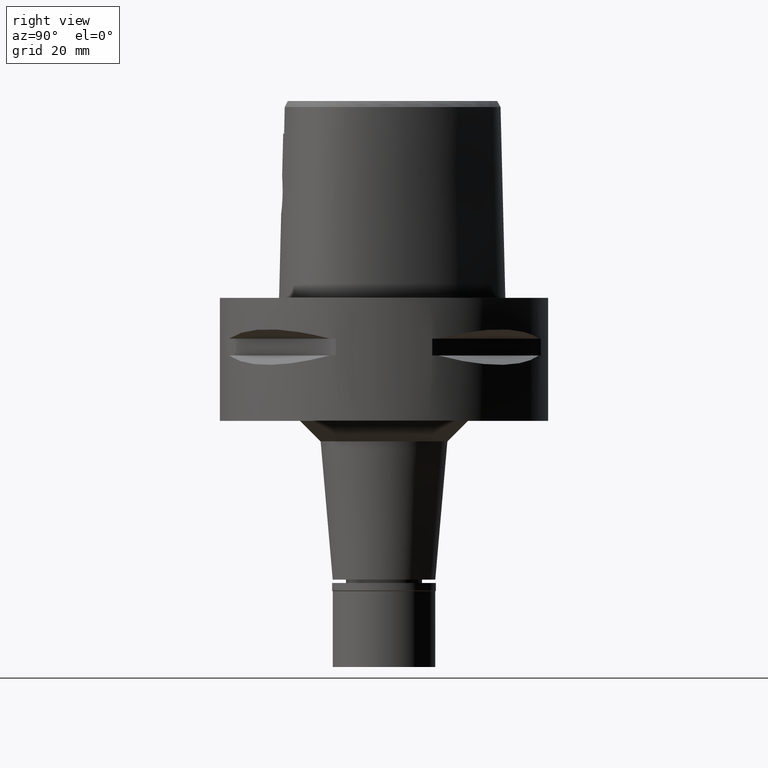
[diagram: clean part render]
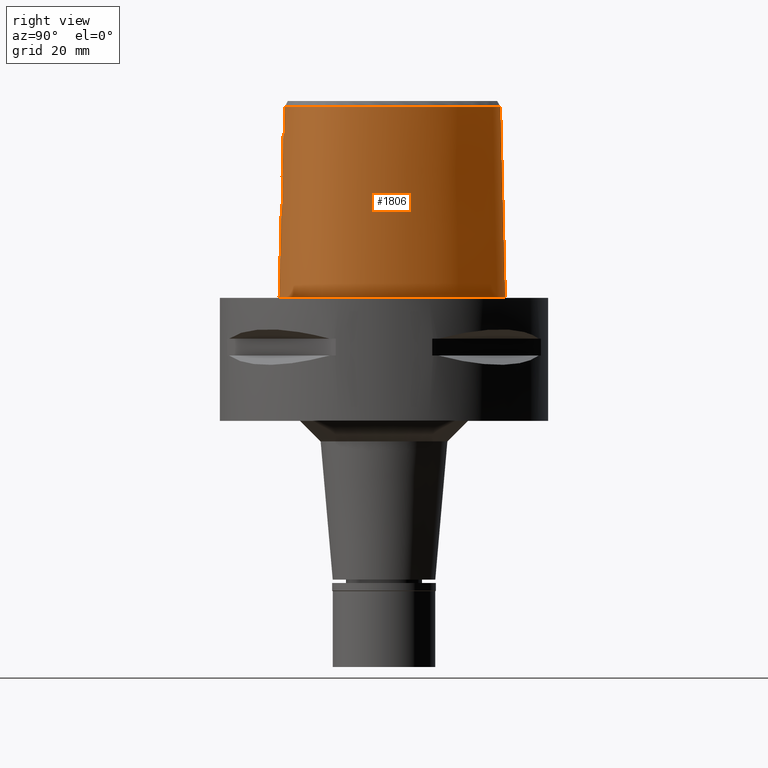
[diagram: same view with one face highlighted and labeled with its STEP entity id]
A machine part, right view. The second image highlights one B-rep face of the part: STEP entity #1806.
In plain terms, the highlighted face is a freeform B-spline surface patch.
Its self-contained STEP definition (entity closure, byte-faithful):
#3 = CARTESIAN_POINT ( 'NONE',  ( 3.512978482355694876, -24.74890643940160473, 27.89278862330787589 ) ) ;
#12 = CARTESIAN_POINT ( 'NONE',  ( 0.7484115207759000077, 29.63215901922000128, -0.9304144788529999932 ) ) ;
#43 = CARTESIAN_POINT ( 'NONE',  ( 11.70978320535079931, -23.05272019185293786, 46.52069240067355338 ) ) ;
#63 = CARTESIAN_POINT ( 'NONE',  ( 26.56868348264874413, -7.988862950300866572, 46.52070085311216019 ) ) ;
#69 = CARTESIAN_POINT ( 'NONE',  ( 6.528779356875999085, -24.06669574070000195, 47.45113842150000494 ) ) ;
#119 = CARTESIAN_POINT ( 'NONE',  ( -0.5548491719361000607, -24.38637857261000264, 47.45113842150000494 ) ) ;
#132 = EDGE_CURVE ( 'NONE', #325, #975, #4537, .T. ) ;
#146 = CARTESIAN_POINT ( 'NONE',  ( 2.373865160417999665, -25.21827242895999888, 15.19676982127000109 ) ) ;
#174 = CARTESIAN_POINT ( 'NONE',  ( -0.5537150990500000480, 28.37988172966000278, 47.45113842150000494 ) ) ;
#196 = EDGE_CURVE ( 'NONE', #4711, #1984, #814, .T. ) ;
#204 = CARTESIAN_POINT ( 'NONE',  ( -0.6060951003561000361, 29.58848805129999704, -0.9304144788529999932 ) ) ;
#207 = CARTESIAN_POINT ( 'NONE',  ( 17.45811262628999927, 19.27961880642000025, 15.19676982127000109 ) ) ;
#218 = CARTESIAN_POINT ( 'NONE',  ( 3.418326490945260865, -24.90370471633881166, 21.99337763265281964 ) ) ;
#230 = CARTESIAN_POINT ( 'NONE',  ( 25.63065467266999775, -13.07945040997999975, 31.32395412138000523 ) ) ;
#258 = CARTESIAN_POINT ( 'NONE',  ( 0.7047156113828999535, 28.82388505275000057, 31.32395412138000523 ) ) ;
#276 = CARTESIAN_POINT ( 'NONE',  ( 0.5741109003796891486, -25.06046598330698671, 20.47661985235025739 ) ) ;
#306 = CARTESIAN_POINT ( 'NONE',  ( 4.547962263617893797, -24.73685171198799182, 24.85950514487636198 ) ) ;
#323 = CARTESIAN_POINT ( 'NONE',  ( 27.68378750939452360, -8.751933590071784508, 1.165658668005574439E-06 ) ) ;
#325 = VERTEX_POINT ( 'NONE', #1724 ) ;
#340 = CARTESIAN_POINT ( 'NONE',  ( 26.34453533305999784, -11.19579297600999901, 31.32395412138000523 ) ) ;
#354 = CARTESIAN_POINT ( 'NONE',  ( 4.255303340876162466, -24.72011691775877651, 26.61166571686794313 ) ) ;
#361 = B_SPLINE_CURVE_WITH_KNOTS ( 'NONE', 3,
 ( #2078, #2003, #4393, #845 ),
 .UNSPECIFIED., .F., .F.,
 ( 4, 4 ),
 ( 0.0000000000000000000, 1.000000000000000000 ),
 .UNSPECIFIED. ) ;
#365 = CARTESIAN_POINT ( 'NONE',  ( 25.95531695965999930, -11.08496013630999855, 47.45113842150000494 ) ) ;
#376 = CARTESIAN_POINT ( 'NONE',  ( 25.63812387330620268, -14.80217771977588015, 1.165658668005574439E-06 ) ) ;
#384 = CARTESIAN_POINT ( 'NONE',  ( 1.153626000818865682, -24.82864766317861083, 29.44729853102404959 ) ) ;
#391 = CARTESIAN_POINT ( 'NONE',  ( 23.44929528157999954, -17.78045351951999820, -0.9304144788529999932 ) ) ;
#396 = CARTESIAN_POINT ( 'NONE',  ( 3.149084868216509125, 29.34015622135638068, 1.165658668005574439E-06 ) ) ;
#411 = CARTESIAN_POINT ( 'NONE',  ( 2.979937750342999792, 28.57037856214000016, 31.32395412138000523 ) ) ;
#427 = CARTESIAN_POINT ( 'NONE',  ( 1.813541865606719039, -24.81148519056494806, 29.17313109452611997 ) ) ;
#463 = CARTESIAN_POINT ( 'NONE',  ( 24.48700992949754607, 6.834036305490400309, 46.52070592457523190 ) ) ;
#469 = VERTEX_POINT ( 'NONE', #2342 ) ;
#486 = CARTESIAN_POINT ( 'NONE',  ( -2.263615543289000344E-12, -25.06378435148999984, 20.44999999999999929 ) ) ;
#494 = CARTESIAN_POINT ( 'NONE',  ( 15.30623779601999956, -22.98697010192000079, -0.9304144788529999932 ) ) ;
#512 = CARTESIAN_POINT ( 'NONE',  ( 2.760678900605070485, 28.19254769429962337, 46.52071606750159560 ) ) ;
#553 = CARTESIAN_POINT ( 'NONE',  ( -0.8532294277651999437, -25.59082453097000354, -0.9304144788529999932 ) ) ;
#604 = CARTESIAN_POINT ( 'NONE',  ( 4.602925666818999950, -24.35121855888000297, 40.00000005214999987 ) ) ;
#605 = CARTESIAN_POINT ( 'NONE',  ( 27.12297207985999847, -11.41745865541999905, -0.9304144788529999932 ) ) ;
#619 = CARTESIAN_POINT ( 'NONE',  ( 1.157035249423343126, -25.04636291852922625, 20.59695966232724373 ) ) ;
#635 = CARTESIAN_POINT ( 'NONE',  ( 15.01246784659999989, -22.23414198533000175, 31.32395412138000523 ) ) ;
#646 = CARTESIAN_POINT ( 'NONE',  ( 1.374979210368837412, -25.03889659011748492, 20.66206490747627456 ) ) ;
#701 = CARTESIAN_POINT ( 'NONE',  ( 4.412773899541611478, -24.77516587915418356, 23.85162301166201360 ) ) ;
#739 = CARTESIAN_POINT ( 'NONE',  ( 27.30517726791000044, -8.703986977937999470, 15.19676982127000109 ) ) ;
#744 = CARTESIAN_POINT ( 'NONE',  ( 24.77458491141283758, -16.12173826395166998, 1.165658668005574439E-06 ) ) ;
#762 = CARTESIAN_POINT ( 'NONE',  ( 13.23332856296000060, 24.06149249906999898, -0.9304144788529999932 ) ) ;
#785 = CARTESIAN_POINT ( 'NONE',  ( 24.60869384124000092, -14.20783601294000142, 47.45113842150000494 ) ) ;
#804 = CARTESIAN_POINT ( 'NONE',  ( 0.5545157691444380088, -24.83629963747999625, 29.55000000000000426 ) ) ;
#811 = CARTESIAN_POINT ( 'NONE',  ( 8.683908161916999546, 25.77663442150999984, 47.45113842150000494 ) ) ;
#814 = LINE ( 'NONE', #486, #3118 ) ;
#819 = CARTESIAN_POINT ( 'NONE',  ( 4.148697022416999716E-11, 29.57499999998999840, 1.067294401005999885E-13 ) ) ;
#845 = CARTESIAN_POINT ( 'NONE',  ( -1.451045074373000022E-08, -24.57504746727000011, 40.00000005214000254 ) ) ;
#850 = CARTESIAN_POINT ( 'NONE',  ( 3.227783996387110221, -24.76107025147648244, 28.20686722737168850 ) ) ;
#886 = CARTESIAN_POINT ( 'NONE',  ( 4.472216720976999405, -24.20009030094000124, 46.52069014668999358 ) ) ;
#892 = CARTESIAN_POINT ( 'NONE',  ( -0.8462047059430000129, -25.18772800980000071, 15.19676982127000109 ) ) ;
#902 = EDGE_CURVE ( 'NONE', #5087, #975, #5099, .T. ) ;
#975 = VERTEX_POINT ( 'NONE', #3114 ) ;
#994 = CARTESIAN_POINT ( 'NONE',  ( 26.37046814545000117, -13.40391019821999841, -0.9304144788529999932 ) ) ;
#1007 = CARTESIAN_POINT ( 'NONE',  ( 1.609901483201636729, -25.02958960435421076, 20.74402583925053989 ) ) ;
#1020 = CARTESIAN_POINT ( 'NONE',  ( -0.5711750994854000174, 28.78275050354000086, 31.32395412138000523 ) ) ;
#1023 = CARTESIAN_POINT ( 'NONE',  ( 26.00056140906000124, -13.24168030409999908, 15.19676982127000109 ) ) ;
#1038 = CARTESIAN_POINT ( 'NONE',  ( 4.549979298456325871, -24.73407938846012755, 24.96161245962009900 ) ) ;
#1051 = CARTESIAN_POINT ( 'NONE',  ( -0.8826521036007999310, 29.16640542141000125, 15.19676982127000109 ) ) ;
#1054 = CARTESIAN_POINT ( 'NONE',  ( 21.65785138289999878, 12.50416150533999904, 31.32395412138000523 ) ) ;
#1065 = CARTESIAN_POINT ( 'NONE',  ( 3.180359783745228874, -24.92613363770006885, 21.74608895217525983 ) ) ;
#1113 = EDGE_LOOP ( 'NONE', ( #2477, #1489, #4669, #1833, #1149, #2157, #1622, #4145 ) ) ;
#1123 = CARTESIAN_POINT ( 'NONE',  ( 4.186622009783885545, -24.81141158316092543, 23.21777758281610460 ) ) ;
#1149 = ORIENTED_EDGE ( 'NONE', *, *, #2198, .T. ) ;
#1158 = CARTESIAN_POINT ( 'NONE',  ( 17.77103258631999694, 19.53703864450000083, -0.9304144788529999932 ) ) ;
#1170 = CARTESIAN_POINT ( 'NONE',  ( 3.115833847005024637, -24.76582665838806463, 28.31908668410564189 ) ) ;
#1179 = CARTESIAN_POINT ( 'NONE',  ( 20.70054131112000206, -18.64994422812999986, 47.45113842150000494 ) ) ;
#1188 = CARTESIAN_POINT ( 'NONE',  ( 6.262496933459375192, 28.35083005113985521, 1.165658668005574439E-06 ) ) ;
#1194 = CARTESIAN_POINT ( 'NONE',  ( 1.351075727145000046E-14, -24.83629963747999980, 29.55000000000000071 ) ) ;
#1205 = CARTESIAN_POINT ( 'NONE',  ( 5.801139432045999911, 27.25218159391999961, 47.45113842150000494 ) ) ;
#1210 = CARTESIAN_POINT ( 'NONE',  ( 5.530043876419373561, 27.35846726636021131, 46.52071494050976952 ) ) ;
#1221 = CARTESIAN_POINT ( 'NONE',  ( 3.252660951005723611, -24.76001264346002273, 28.18163816682579892 ) ) ;
#1231 = CARTESIAN_POINT ( 'NONE',  ( 26.53043812451372219, -3.252830914801609907, 46.52070254359984602 ) ) ;
#1245 = CARTESIAN_POINT ( 'NONE',  ( 3.756465253610790089, -24.73852494831078275, 27.57169756947411798 ) ) ;
#1389 = CARTESIAN_POINT ( 'NONE',  ( -1.821165774657999902E-11, -25.57499999999999929, 1.131317262092999931E-13 ) ) ;
#1391 = FACE_OUTER_BOUND ( 'NONE', #1113, .T. ) ;
#1401 = CARTESIAN_POINT ( 'NONE',  ( -1.451045074373000022E-08, -24.57504746727000011, 40.00000005214000254 ) ) ;
#1404 = CARTESIAN_POINT ( 'NONE',  ( 2.697261088284074404, -24.96604596303032508, 21.33198344650104872 ) ) ;
#1417 = CARTESIAN_POINT ( 'NONE',  ( 21.19046239205000148, -19.29498367028000416, 15.19676982127000109 ) ) ;
#1429 = CARTESIAN_POINT ( 'NONE',  ( 4.537017841947838193, -24.74324082396890034, 24.64916680772595825 ) ) ;
#1443 = CARTESIAN_POINT ( 'NONE',  ( 27.06950059939999775, -5.357664959743000388, 31.32395412138000523 ) ) ;
#1462 = CARTESIAN_POINT ( 'NONE',  ( 4.560197061652469408, -24.30012317751191020, 42.17356341699667155 ) ) ;
#1488 = CARTESIAN_POINT ( 'NONE',  ( 3.205701519811287703, -24.92381821717546586, 21.77105828208824789 ) ) ;
#1489 = ORIENTED_EDGE ( 'NONE', *, *, #132, .T. ) ;
#1554 = CARTESIAN_POINT ( 'NONE',  ( 22.57751558829999894, -16.93548378571999891, 47.45113842150000494 ) ) ;
#1563 = CARTESIAN_POINT ( 'NONE',  ( 22.33885463233493951, 12.89734373536445844, 1.165658668005574439E-06 ) ) ;
#1571 = CARTESIAN_POINT ( 'NONE',  ( 1.883305297015232194, -24.80958828430692975, 29.14211520707036129 ) ) ;
#1578 = CARTESIAN_POINT ( 'NONE',  ( 24.79336081453000062, -16.13554022454000147, -0.9304144788529999932 ) ) ;
#1584 = CARTESIAN_POINT ( 'NONE',  ( 27.53737508972407255, -1.765625004409581589, 1.165658668005574439E-06 ) ) ;
#1591 = CARTESIAN_POINT ( 'NONE',  ( 4.337077477086218380, -24.71860659089786338, 26.37767366826317783 ) ) ;
#1600 = CARTESIAN_POINT ( 'NONE',  ( 25.65830880168000050, -14.81383149362000040, -0.9304144788529999932 ) ) ;
#1607 = B_SPLINE_CURVE_WITH_KNOTS ( 'NONE', 3,
 ( #3112, #5079, #276, #2249, #619, #646, #3861, #1007, #3447, #1932, #2644, #2277, #4579, #1882, #2611, #3419, #1404, #3002, #4609, #5026, #4193, #4637, #1065, #2223, #1488, #3806, #218, #3027, #2694, #1826, #3083, #2671, #4661, #4688, #4995, #3832, #4247, #1123, #4272, #701, #3503, #2311, #1429, #3889, #306, #2724, #1038, #1907, #1643, #3239, #3936, #1591, #4811, #354, #3164, #4739, #2385, #1960, #3621, #4422, #1245, #4790, #3, #2842, #3598, #3554, #3188, #1221, #4348, #850, #1170, #5132, #4373, #4762, #3527, #2746, #4322, #2768, #2820, #2456, #4720, #1571, #427, #2007, #384, #804, #1194 ),
 .UNSPECIFIED., .F., .F.,
 ( 4, 2, 2, 1, 1, 1, 1, 2, 2, 2, 2, 2, 1, 1, 2, 2, 2, 2, 2, 2, 1, 2, 2, 2, 2, 1, 2, 2, 2, 2, 1, 1, 1, 2, 2, 2, 2, 2, 1, 1, 2, 2, 2, 1, 2, 2, 2, 1, 2, 2, 4 ),
 ( 0.0000000000000000000, 0.06249999999999443501, 0.09374999999999164557, 0.1093749999999901190, 0.1171874999999895223, 0.1210937499999893419, 0.1230468749999890921, 0.1240234374999889394, 0.1249999999999888006, 0.1874999999999806544, 0.2187499999999765188, 0.2343749999999744926, 0.2421874999999732991, 0.2460937499999727440, 0.2480468749999724110, 0.2499999999999721056, 0.2812499999999660272, 0.2968749999999629741, 0.3124999999999599209, 0.3437499999999538147, 0.3593749999999510947, 0.3671874999999493738, 0.3749999999999477085, 0.4374999999999329425, 0.4687499999999258926, 0.4843749999999227840, 0.4921874999999212297, 0.4999999999999196199, 0.5624999999999070743, 0.5937499999999008571, 0.6093749999998977485, 0.6171874999998963052, 0.6210937499998955280, 0.6230468749998950839, 0.6249999999998947509, 0.6874999999998977485, 0.7187499999998993028, 0.7343749999999003020, 0.7421874999999008571, 0.7460937499999014122, 0.7480468749999018563, 0.7499999999999024114, 0.7812499999999144018, 0.7968749999999205080, 0.8046874999999235056, 0.8124999999999263922, 0.8437499999999386047, 0.8593749999999447109, 0.8671874999999478195, 0.8749999999999508171, 1.000000000000000000 ),
 .UNSPECIFIED. ) ;
#1622 = ORIENTED_EDGE ( 'NONE', *, *, #196, .T. ) ;
#1643 = CARTESIAN_POINT ( 'NONE',  ( 4.523121810470202675, -24.72136632330987638, 25.57645994462144046 ) ) ;
#1675 = CARTESIAN_POINT ( 'NONE',  ( 26.66096789089045416, -6.450661550929212673, 46.52070141660802705 ) ) ;
#1710 = LINE ( 'NONE', #4055, #2802 ) ;
#1724 = CARTESIAN_POINT ( 'NONE',  ( -1.216573165896999972E-11, 28.41206021534999593, 46.52071719450999154 ) ) ;
#1730 = CARTESIAN_POINT ( 'NONE',  ( -0.8391799841207999711, -24.78463148862999788, 31.32395412138000523 ) ) ;
#1756 = CARTESIAN_POINT ( 'NONE',  ( 11.43012068979999896, -22.98864608961000044, 47.45113842150000494 ) ) ;
#1806 = ADVANCED_FACE ( 'NONE', ( #1391 ), #4725, .T. ) ;
#1815 = CARTESIAN_POINT ( 'NONE',  ( -0.9090099844914000249, 29.56867551602000077, -0.9304144788529999932 ) ) ;
#1817 = CARTESIAN_POINT ( 'NONE',  ( 9.105791465501001269, 26.46675914480000102, 15.19676982127000109 ) ) ;
#1826 = CARTESIAN_POINT ( 'NONE',  ( 3.695416430653968742, -24.87420445000564229, 22.34444809527643372 ) ) ;
#1833 = ORIENTED_EDGE ( 'NONE', *, *, #2556, .T. ) ;
#1838 = CARTESIAN_POINT ( 'NONE',  ( 26.36214112192999792, -1.945111148517999933, 47.45113842150000494 ) ) ;
#1865 = CARTESIAN_POINT ( 'NONE',  ( -0.8299363418196000763, 28.36186523219999955, 47.45113842150000494 ) ) ;
#1882 = CARTESIAN_POINT ( 'NONE',  ( 1.952635857166618250, -25.01389984458333160, 20.88358337727347802 ) ) ;
#1907 = CARTESIAN_POINT ( 'NONE',  ( 4.550159243768822748, -24.72595648767390131, 25.28426205013432337 ) ) ;
#1923 = CARTESIAN_POINT ( 'NONE',  ( 6.691850459819625563, -25.24546872104254192, 1.165658668005574439E-06 ) ) ;
#1932 = CARTESIAN_POINT ( 'NONE',  ( 1.704163054240290798, -25.02540437729527412, 20.78117410888068761 ) ) ;
#1940 = CARTESIAN_POINT ( 'NONE',  ( 27.87808443104999867, -5.337383714067000184, -0.9304144788529999932 ) ) ;
#1960 = CARTESIAN_POINT ( 'NONE',  ( 4.208386412724203218, -24.72133790640166495, 26.72975093107580946 ) ) ;
#1969 = CARTESIAN_POINT ( 'NONE',  ( 12.70057963610000051, 23.45048169773000168, 31.32395412138000523 ) ) ;
#1978 = CARTESIAN_POINT ( 'NONE',  ( 26.34912734546020019, -13.39455076952570600, 1.165658668005574439E-06 ) ) ;
#1984 = VERTEX_POINT ( 'NONE', #1389 ) ;
#1992 = CARTESIAN_POINT ( 'NONE',  ( 26.73375370645999993, -11.30662581572000036, 15.19676982127000109 ) ) ;
#2003 = CARTESIAN_POINT ( 'NONE',  ( 3.083106517893279719, -24.50056604487573964, 40.00000010051915211 ) ) ;
#2007 = CARTESIAN_POINT ( 'NONE',  ( 1.779627886570329887, -24.81238721778816014, 29.18772178098383918 ) ) ;
#2017 = CARTESIAN_POINT ( 'NONE',  ( 2.892852102256000091, 28.17405737630999951, 47.45113842150000494 ) ) ;
#2048 = CARTESIAN_POINT ( 'NONE',  ( 17.84219066873169979, -20.48406917474746436, 46.52069465465715581 ) ) ;
#2071 = CARTESIAN_POINT ( 'NONE',  ( 25.61240997289474208, -12.23358473966203164, 46.52069916262439619 ) ) ;
#2078 = CARTESIAN_POINT ( 'NONE',  ( 4.602925666818999950, -24.35121855888000297, 40.00000005214999987 ) ) ;
#2112 = B_SPLINE_CURVE_WITH_KNOTS ( 'NONE', 3,
 ( #4305, #3191, #4743, #3145 ),
 .UNSPECIFIED., .F., .F.,
 ( 4, 4 ),
 ( 0.0000000000000000000, 1.000000000000000000 ),
 .UNSPECIFIED. ) ;
#2118 = CARTESIAN_POINT ( 'NONE',  ( 6.913370730854801138, 26.74336904842474638, 46.52071437701388135 ) ) ;
#2151 = CARTESIAN_POINT ( 'NONE',  ( 6.584202216753999970, -24.46732447588999904, 31.32395412138000523 ) ) ;
#2157 = ORIENTED_EDGE ( 'NONE', *, *, #4949, .F. ) ;
#2198 = EDGE_CURVE ( 'NONE', #2321, #469, #2112, .T. ) ;
#2210 = CARTESIAN_POINT ( 'NONE',  ( 22.35908247772000124, 12.90902243052999943, -0.9304144788529999932 ) ) ;
#2223 = CARTESIAN_POINT ( 'NONE',  ( 3.196341748950109363, -24.92467674393279253, 21.76178677583788001 ) ) ;
#2237 = CARTESIAN_POINT ( 'NONE',  ( 24.46791223490000178, -15.89630654072999860, 15.19676982127000109 ) ) ;
#2249 = CARTESIAN_POINT ( 'NONE',  ( 1.011135947205846985, -25.05051087875798288, 20.56129276502834102 ) ) ;
#2277 = CARTESIAN_POINT ( 'NONE',  ( 1.726554843534495953, -25.02437791916836218, 20.79030502623886179 ) ) ;
#2278 = CARTESIAN_POINT ( 'NONE',  ( 4.516620281278921567, -24.24973700794193476, 44.34712678184333612 ) ) ;
#2311 = CARTESIAN_POINT ( 'NONE',  ( 4.517116520646562883, -24.75057419275595549, 24.43553773667433404 ) ) ;
#2321 = VERTEX_POINT ( 'NONE', #1401 ) ;
#2342 = CARTESIAN_POINT ( 'NONE',  ( 1.351075727145000046E-14, -24.83629963747999980, 29.55000000000000071 ) ) ;
#2344 = CARTESIAN_POINT ( 'NONE',  ( 26.90338677673999968, -8.653104855035998355, 31.32395412138000523 ) ) ;
#2352 = CARTESIAN_POINT ( 'NONE',  ( 17.75297948908530898, 19.52218748138929172, 1.165658668005574439E-06 ) ) ;
#2368 = CARTESIAN_POINT ( 'NONE',  ( 12.96695409952999967, 23.75598709839999856, 15.19676982127000109 ) ) ;
#2385 = CARTESIAN_POINT ( 'NONE',  ( 4.212885333431600543, -24.72121330192674549, 26.71877560768000492 ) ) ;
#2395 = CARTESIAN_POINT ( 'NONE',  ( 18.56135208398999836, -21.47443746694999689, -0.9304144788529999932 ) ) ;
#2402 = CARTESIAN_POINT ( 'NONE',  ( 25.20914247278295761, 6.827421863989363793, 1.165658668005574439E-06 ) ) ;
#2417 = CARTESIAN_POINT ( 'NONE',  ( 8.894849813708999520, 26.12169678314999999, 31.32395412138000523 ) ) ;
#2419 = CARTESIAN_POINT ( 'NONE',  ( 23.08984995680363994, -16.35075897049260973, 46.52069719038874496 ) ) ;
#2423 = CARTESIAN_POINT ( 'NONE',  ( 1.049694955991578693, 29.57499997086068433, 1.165658668005574439E-06 ) ) ;
#2443 = CARTESIAN_POINT ( 'NONE',  ( 10.99875819582644709, 24.38035098656050792, 46.52071268652618130 ) ) ;
#2456 = CARTESIAN_POINT ( 'NONE',  ( 2.087632527504702740, -24.80370565429717189, 29.04349576580941061 ) ) ;
#2477 = ORIENTED_EDGE ( 'NONE', *, *, #3860, .F. ) ;
#2516 = CARTESIAN_POINT ( 'NONE',  ( 1.375467128704392694, 28.41206022877313586, 46.52071663099749799 ) ) ;
#2556 = EDGE_CURVE ( 'NONE', #5087, #2321, #361, .T. ) ;
#2573 = CARTESIAN_POINT ( 'NONE',  ( -0.5886350999207000667, 29.18561927741999895, 15.19676982127000109 ) ) ;
#2600 = CARTESIAN_POINT ( 'NONE',  ( 24.14246365528000027, -15.65707285691999751, 31.32395412138000523 ) ) ;
#2611 = CARTESIAN_POINT ( 'NONE',  ( 2.192364263587617490, -25.00047163864963551, 21.00192190659220515 ) ) ;
#2629 = CARTESIAN_POINT ( 'NONE',  ( 26.40443226313000125, 1.802817673352000050, 15.19676982127000109 ) ) ;
#2644 = CARTESIAN_POINT ( 'NONE',  ( 1.717599865389492830, -25.02478947459729852, 20.78664336873125151 ) ) ;
#2658 = CARTESIAN_POINT ( 'NONE',  ( 24.95856549471999841, -14.40983450649999931, 31.32395412138000523 ) ) ;
#2669 = B_SPLINE_CURVE_WITH_KNOTS ( 'NONE', 3,
 ( #3952, #2710, #1923, #2739, #4708, #3929, #3156, #4290, #744, #376, #1978, #3569, #323, #5145, #1584, #5123, #2402, #1563, #2352, #3995, #3206, #1188, #396, #2423, #819 ),
 .UNSPECIFIED., .F., .F.,
 ( 4, 1, 1, 1, 1, 1, 1, 1, 1, 1, 1, 1, 1, 1, 1, 1, 1, 1, 1, 1, 1, 1, 4 ),
 ( 0.0000000000000000000, 0.08333333333347001104, 0.1250000000001000033, 0.1666666666668000230, 0.2083333333334000115, 0.2500000000000000000, 0.2916666666666999919, 0.3125000000000000000, 0.3333333333333000081, 0.3541666666666999919, 0.3750000000000000000, 0.4166666666666000163, 0.4583333333332000326, 0.4999999999998999689, 0.5416666666666000163, 0.5833333333331000015, 0.6666666666664999852, 0.7499999999997000177, 0.8333333333329999704, 0.8749999999995999866, 0.9166666666663000340, 0.9583333333329000503, 1.000000000000000000 ),
 .UNSPECIFIED. ) ;
#2671 = CARTESIAN_POINT ( 'NONE',  ( 3.861082105047251911, -24.85463631592574174, 22.58840412900304173 ) ) ;
#2694 = CARTESIAN_POINT ( 'NONE',  ( 3.606429171763833263, -24.88406245827873065, 22.22480142265834857 ) ) ;
#2710 = CARTESIAN_POINT ( 'NONE',  ( 2.676740183930187200, -25.57499997085983523, 1.165658668005574439E-06 ) ) ;
#2724 = CARTESIAN_POINT ( 'NONE',  ( 4.549574022937066253, -24.73494683104343395, 24.92875559372933836 ) ) ;
#2739 = CARTESIAN_POINT ( 'NONE',  ( 11.74025984713455095, -24.13566403432510299, 1.165658668005574439E-06 ) ) ;
#2746 = CARTESIAN_POINT ( 'NONE',  ( 2.592678685478296607, -24.78641481269938041, 28.73923899945384264 ) ) ;
#2755 = CARTESIAN_POINT ( 'NONE',  ( 17.14519266625999805, 19.02219896832999879, 31.32395412138000523 ) ) ;
#2768 = CARTESIAN_POINT ( 'NONE',  ( 2.410767390560844881, -24.79324877274626715, 28.86155595108843386 ) ) ;
#2777 = CARTESIAN_POINT ( 'NONE',  ( 18.36798846925000106, -21.11924012313000176, 15.19676982127000109 ) ) ;
#2802 = VECTOR ( 'NONE', #2890, 1000.000000000000000 ) ;
#2804 = CARTESIAN_POINT ( 'NONE',  ( 3.067023398429000292, 28.96669974797000080, 15.19676982127000109 ) ) ;
#2807 = CARTESIAN_POINT ( 'NONE',  ( 16.39076485916855574, -21.20751266143476244, 46.52069409116126764 ) ) ;
#2820 = CARTESIAN_POINT ( 'NONE',  ( 2.284825071839919897, -24.79755434855746898, 28.93755567619670188 ) ) ;
#2842 = CARTESIAN_POINT ( 'NONE',  ( 3.458990831517686271, -24.75121472495268904, 27.95724070546421913 ) ) ;
#2878 = CARTESIAN_POINT ( 'NONE',  ( 20.45409312013283554, -18.82869992194089903, 46.52069578164897479 ) ) ;
#2890 = DIRECTION ( 'NONE',  ( 1.152947520041030048E-12, 0.02499051293969065113, -0.9996876883622259902 ) ) ;
#2907 = CARTESIAN_POINT ( 'NONE',  ( -0.5595330821651999242, -24.78951210770999936, 31.32395412138000523 ) ) ;
#2964 = CARTESIAN_POINT ( 'NONE',  ( 15.15935282130999973, -22.61055604362999816, 15.19676982127000109 ) ) ;
#2989 = CARTESIAN_POINT ( 'NONE',  ( -0.5689009026233999844, -25.59577917789000168, -0.9304144788529999932 ) ) ;
#3002 = CARTESIAN_POINT ( 'NONE',  ( 2.890648186359103811, -24.95092863274544825, 21.48525694161333988 ) ) ;
#3017 = CARTESIAN_POINT ( 'NONE',  ( 27.56041892245000113, -1.762105663755000107, -0.9304144788529999932 ) ) ;
#3027 = CARTESIAN_POINT ( 'NONE',  ( 3.560464869665294518, -24.88898092548869911, 22.16607190872599631 ) ) ;
#3037 = VERTEX_POINT ( 'NONE', #3463 ) ;
#3044 = CARTESIAN_POINT ( 'NONE',  ( 26.66520868358000129, -5.367805582582000135, 47.45113842150000494 ) ) ;
#3083 = CARTESIAN_POINT ( 'NONE',  ( 3.739368471919783055, -24.86915408846631692, 22.40675187304729121 ) ) ;
#3112 = CARTESIAN_POINT ( 'NONE',  ( -2.263615543289000344E-12, -25.06378435148999984, 20.44999999999999929 ) ) ;
#3114 = CARTESIAN_POINT ( 'NONE',  ( 4.472216720976999405, -24.20009030094000124, 46.52069014668999358 ) ) ;
#3118 = VECTOR ( 'NONE', #3992, 1000.000000000000000 ) ;
#3145 = CARTESIAN_POINT ( 'NONE',  ( 1.351075727145000046E-14, -24.83629963747999980, 29.55000000000000071 ) ) ;
#3151 = CARTESIAN_POINT ( 'NONE',  ( 25.26074793628000137, -12.91722051586000042, 47.45113842150000494 ) ) ;
#3156 = CARTESIAN_POINT ( 'NONE',  ( 21.42129057593177421, -19.59889646106317329, 1.165658668005574439E-06 ) ) ;
#3164 = CARTESIAN_POINT ( 'NONE',  ( 4.230858595537662303, -24.72073100376797328, 26.67421065539050318 ) ) ;
#3173 = CARTESIAN_POINT ( 'NONE',  ( 25.23075706186999767, 6.836210430587000175, -0.9304144788529999932 ) ) ;
#3188 = CARTESIAN_POINT ( 'NONE',  ( 3.275992991610297000, -24.75902016830567121, 28.15772619068259885 ) ) ;
#3191 = CARTESIAN_POINT ( 'NONE',  ( -4.851603513252007844E-09, -24.66214466420018780, 36.51666702991055047 ) ) ;
#3197 = CARTESIAN_POINT ( 'NONE',  ( 6.271543170533000477, 28.37237220527000048, -0.9304144788529999932 ) ) ;
#3206 = CARTESIAN_POINT ( 'NONE',  ( 9.304563391366016845, 26.79191403755841705, 1.165658668005574439E-06 ) ) ;
#3229 = CARTESIAN_POINT ( 'NONE',  ( 26.04423705948790868, -10.88022456237881741, 46.52069972612030568 ) ) ;
#3239 = CARTESIAN_POINT ( 'NONE',  ( 4.437987378315741083, -24.71842636459944842, 26.01433587875823505 ) ) ;
#3269 = CARTESIAN_POINT ( 'NONE',  ( 24.69258566271341238, -14.08975149522597903, 46.52069831738052841 ) ) ;
#3273 = CARTESIAN_POINT ( 'NONE',  ( -2.263615543289000344E-12, -25.06378435148999984, 20.44999999999999929 ) ) ;
#3277 = CARTESIAN_POINT ( 'NONE',  ( -0.5642169923943001208, -25.19264564279999874, 15.19676982127000109 ) ) ;
#3297 = CARTESIAN_POINT ( 'NONE',  ( 23.53784508589975033, -15.81022840325032064, 46.52069747213668194 ) ) ;
#3329 = CARTESIAN_POINT ( 'NONE',  ( 2.393561154357000120, -25.62160365875000068, -0.9304144788529999932 ) ) ;
#3356 = CARTESIAN_POINT ( 'NONE',  ( 11.74634101484999960, -24.15815461098999961, -0.9304144788529999932 ) ) ;
#3406 = CARTESIAN_POINT ( 'NONE',  ( 26.01411826847999720, 1.699187959358000155, 31.32395412138000523 ) ) ;
#3419 = CARTESIAN_POINT ( 'NONE',  ( 2.568983978598827989, -24.97528315391448572, 21.24168007029558680 ) ) ;
#3434 = CARTESIAN_POINT ( 'NONE',  ( 14.86558287189000005, -21.85772792703999556, 47.45113842150000494 ) ) ;
#3447 = CARTESIAN_POINT ( 'NONE',  ( 1.672780685871462669, -25.02682213713908155, 20.76857498625503595 ) ) ;
#3461 = CARTESIAN_POINT ( 'NONE',  ( -0.8562942227102000592, 28.76413532680999907, 31.32395412138000523 ) ) ;
#3463 = CARTESIAN_POINT ( 'NONE',  ( 4.148697022416999716E-11, 29.57499999998999840, 1.067294401005999885E-13 ) ) ;
#3503 = CARTESIAN_POINT ( 'NONE',  ( 4.496850936021979273, -24.75618253903772370, 24.29074513878773800 ) ) ;
#3527 = CARTESIAN_POINT ( 'NONE',  ( 2.653628212344381954, -24.78409939537364082, 28.69623435022996816 ) ) ;
#3536 = CARTESIAN_POINT ( 'NONE',  ( 24.48145224560999722, 6.531540503571000578, 31.32395412138000523 ) ) ;
#3554 = CARTESIAN_POINT ( 'NONE',  ( 3.329382130118903937, -24.75674668230310616, 28.10179055163412443 ) ) ;
#3564 = CARTESIAN_POINT ( 'NONE',  ( 17.98126123976999935, -20.40884543549999819, 47.45113842150000494 ) ) ;
#3569 = CARTESIAN_POINT ( 'NONE',  ( 27.10051714556994185, -11.41106444511870421, 1.165658668005574439E-06 ) ) ;
#3584 = CARTESIAN_POINT ( 'NONE',  ( 26.79474625778999908, 1.906447387345999944, -0.9304144788529999932 ) ) ;
#3598 = CARTESIAN_POINT ( 'NONE',  ( 3.373359712598877902, -24.75487047605673396, 28.05365220515685110 ) ) ;
#3606 = CARTESIAN_POINT ( 'NONE',  ( 0.7265635660793999806, 29.22802203598000048, 15.19676982127000109 ) ) ;
#3621 = CARTESIAN_POINT ( 'NONE',  ( 4.115420520910591407, -24.72394829500681723, 26.95489229166220824 ) ) ;
#3655 = CARTESIAN_POINT ( 'NONE',  ( 13.63304938779974051, 22.11238814014070186, 46.52071155953436232 ) ) ;
#3660 = CARTESIAN_POINT ( 'NONE',  ( 2.354169166480000186, -24.81494119917000063, 31.32395412138000523 ) ) ;
#3676 = CARTESIAN_POINT ( 'NONE',  ( 20.76159157987535053, 13.99289103072442941, 46.52070817855891249 ) ) ;
#3715 = CARTESIAN_POINT ( 'NONE',  ( -0.8321552622986000403, -24.38153496746000215, 47.45113842150000494 ) ) ;
#3794 = CARTESIAN_POINT ( 'NONE',  ( 9.316733117292999466, 26.81182150644000117, -0.9304144788529999932 ) ) ;
#3806 = CARTESIAN_POINT ( 'NONE',  ( 3.317903692992101750, -24.91347842919925171, 21.88291014845672322 ) ) ;
#3820 = CARTESIAN_POINT ( 'NONE',  ( 27.47379251521999777, -5.347524336904999842, 15.19676982127000109 ) ) ;
#3832 = CARTESIAN_POINT ( 'NONE',  ( 4.141553595727622827, -24.81790787904299833, 23.11546483665196661 ) ) ;
#3860 = EDGE_CURVE ( 'NONE', #325, #3037, #1710, .T. ) ;
#3861 = CARTESIAN_POINT ( 'NONE',  ( 1.483723097889246834, -25.03485232889443424, 20.69751684277684944 ) ) ;
#3889 = CARTESIAN_POINT ( 'NONE',  ( 4.544345534604060433, -24.73984392723427206, 24.75509518056023239 ) ) ;
#3922 = CARTESIAN_POINT ( 'NONE',  ( 27.70696775908000120, -8.754869100840000584, -0.9304144788529999932 ) ) ;
#3929 = CARTESIAN_POINT ( 'NONE',  ( 18.55019647685577056, -21.45394528682550828, 1.165658668005574439E-06 ) ) ;
#3936 = CARTESIAN_POINT ( 'NONE',  ( 4.402195190950402015, -24.71810392633526732, 26.16020714300089267 ) ) ;
#3944 = CARTESIAN_POINT ( 'NONE',  ( 26.76156705544000047, -1.884109320264000020, 31.32395412138000523 ) ) ;
#3952 = CARTESIAN_POINT ( 'NONE',  ( -1.821165774657999902E-11, -25.57499999999999929, 1.131317262092999931E-13 ) ) ;
#3970 = CARTESIAN_POINT ( 'NONE',  ( 18.17462485451000020, -20.76404277932000042, 31.32395412138000523 ) ) ;
#3990 = CARTESIAN_POINT ( 'NONE',  ( 3.154109046515999992, 29.36302093380000144, -0.9304144788529999932 ) ) ;
#3992 = DIRECTION ( 'NONE',  ( -7.796118065575742464E-13, -0.02499051295403921166, -0.9996876883618673881 ) ) ;
#3995 = CARTESIAN_POINT ( 'NONE',  ( 13.21796078620111459, 24.04386716541122127, 1.165658668005574439E-06 ) ) ;
#4055 = CARTESIAN_POINT ( 'NONE',  ( -1.216573165896999972E-11, 28.41206021534999593, 46.52071719450999154 ) ) ;
#4072 = CARTESIAN_POINT ( 'NONE',  ( 11.53552746482000124, -23.37848226340999958, 31.32395412138000523 ) ) ;
#4089 = CARTESIAN_POINT ( 'NONE',  ( -1.216573165896999972E-11, 28.41206021534999593, 46.52071719450999154 ) ) ;
#4145 = ORIENTED_EDGE ( 'NONE', *, *, #4385, .T. ) ;
#4178 = CARTESIAN_POINT ( 'NONE',  ( 24.10679983747999700, 6.379205540063000335, 47.45113842150000494 ) ) ;
#4193 = CARTESIAN_POINT ( 'NONE',  ( 3.100243586364359594, -24.93331626314397909, 21.66917441973971137 ) ) ;
#4209 = CARTESIAN_POINT ( 'NONE',  ( 22.00846693031000001, 12.70659196793999790, 15.19676982127000109 ) ) ;
#4223 = CARTESIAN_POINT ( 'NONE',  ( 4.602925666818999950, -24.35121855888000297, 40.00000005214999987 ) ) ;
#4247 = CARTESIAN_POINT ( 'NONE',  ( 4.172398775490914424, -24.81348664747168087, 23.18477895933814636 ) ) ;
#4248 = CARTESIAN_POINT ( 'NONE',  ( 4.472216720976999405, -24.20009030094000124, 46.52069014668999358 ) ) ;
#4272 = CARTESIAN_POINT ( 'NONE',  ( 4.325577296999667531, -24.79069917426005887, 23.55238152010286257 ) ) ;
#4290 = CARTESIAN_POINT ( 'NONE',  ( 23.43253026647482073, -17.76420408120461047, 1.165658668005574439E-06 ) ) ;
#4305 = CARTESIAN_POINT ( 'NONE',  ( -1.451045074373000022E-08, -24.57504746727000011, 40.00000005214000254 ) ) ;
#4309 = CARTESIAN_POINT ( 'NONE',  ( 25.30843714819999946, -14.61183300006000074, 15.19676982127000109 ) ) ;
#4322 = CARTESIAN_POINT ( 'NONE',  ( 2.560989721135741970, -24.78761092133468935, 28.76100236096186791 ) ) ;
#4332 = CARTESIAN_POINT ( 'NONE',  ( 16.83227270623000038, 18.76477913025000177, 47.45113842150000494 ) ) ;
#4348 = CARTESIAN_POINT ( 'NONE',  ( 3.237005511786299028, -24.76067832112078193, 28.19756469887087746 ) ) ;
#4356 = CARTESIAN_POINT ( 'NONE',  ( 23.81701507565000142, -15.41783917309999907, 47.45113842150000494 ) ) ;
#4373 = CARTESIAN_POINT ( 'NONE',  ( 2.832428424601348915, -24.77719445135581466, 28.56165880794238987 ) ) ;
#4381 = CARTESIAN_POINT ( 'NONE',  ( 6.114741924369999637, 27.99897533481999901, 15.19676982127000109 ) ) ;
#4385 = EDGE_CURVE ( 'NONE', #1984, #3037, #2669, .T. ) ;
#4393 = CARTESIAN_POINT ( 'NONE',  ( 1.541632268877329404, -24.57506718866434881, 40.00000010051915211 ) ) ;
#4407 = CARTESIAN_POINT ( 'NONE',  ( 21.61408639850570168, -17.89738970854720534, 46.52069634514488428 ) ) ;
#4422 = CARTESIAN_POINT ( 'NONE',  ( 3.996558060057624484, -24.72854169055285922, 27.19514510551928410 ) ) ;
#4485 = CARTESIAN_POINT ( 'NONE',  ( 6.695047936511000053, -25.26858194625999943, -0.9304144788529999932 ) ) ;
#4537 = B_SPLINE_CURVE_WITH_KNOTS ( 'NONE', 3,
 ( #4089, #2516, #512, #1210, #2118, #2443, #3655, #3676, #463, #4820, #1231, #1675, #63, #3229, #2071, #3269, #4843, #3297, #2419, #4407, #2878, #2048, #2807, #43, #5164, #886 ),
 .UNSPECIFIED., .F., .F.,
 ( 4, 2, 2, 2, 2, 2, 2, 2, 2, 2, 2, 2, 4 ),
 ( 0.0000000000000000000, 0.06250000000000000000, 0.1250000000000000000, 0.2500000000000000000, 0.5000000000000000000, 0.5625000000000000000, 0.6250000000000000000, 0.6875000000000000000, 0.7187500000000000000, 0.7500000000000000000, 0.8125000000000000000, 0.8750000000000000000, 1.000000000000000000 ),
 .UNSPECIFIED. ) ;
#4567 = CARTESIAN_POINT ( 'NONE',  ( 25.62380427381999937, 1.595558245364000038, 47.45113842150000494 ) ) ;
#4579 = CARTESIAN_POINT ( 'NONE',  ( 1.732112786592006959, -25.02412118468007662, 20.79259001707724153 ) ) ;
#4593 = CARTESIAN_POINT ( 'NONE',  ( 27.16099298894999947, -1.823107492009000019, 15.19676982127000109 ) ) ;
#4609 = CARTESIAN_POINT ( 'NONE',  ( 2.955264688608119972, -24.94567926532404556, 21.53931554468373832 ) ) ;
#4623 = CARTESIAN_POINT ( 'NONE',  ( 0.6828676566864000375, 28.41974806952000421, 47.45113842150000494 ) ) ;
#4625 = CARTESIAN_POINT ( 'NONE',  ( 20.94550185158999867, -18.97246394919999801, 31.32395412138000523 ) ) ;
#4637 = CARTESIAN_POINT ( 'NONE',  ( 3.156365463052563936, -24.92830912253882047, 21.72269515073478274 ) ) ;
#4661 = CARTESIAN_POINT ( 'NONE',  ( 3.937353243848184192, -24.84519667286566147, 22.71482954510167929 ) ) ;
#4669 = ORIENTED_EDGE ( 'NONE', *, *, #902, .F. ) ;
#4688 = CARTESIAN_POINT ( 'NONE',  ( 4.043275511959485868, -24.83139551622599583, 22.91194186429490287 ) ) ;
#4708 = CARTESIAN_POINT ( 'NONE',  ( 15.29776365224693890, -22.96525387904253890, 1.165658668005574439E-06 ) ) ;
#4711 = VERTEX_POINT ( 'NONE', #3273 ) ;
#4720 = CARTESIAN_POINT ( 'NONE',  ( 1.986969619769310080, -24.80670454267275460, 29.09445024139902358 ) ) ;
#4725 = B_SPLINE_SURFACE_WITH_KNOTS ( 'NONE', 3, 3, ( 
 ( #553, #892, #1730, #3715 ),
 ( #2989, #3277, #2907, #119 ),
 ( #3329, #146, #3660, #4900 ),
 ( #4485, #4930, #2151, #69 ),
 ( #3356, #4851, #4072, #1756 ),
 ( #494, #2964, #635, #3434 ),
 ( #2395, #2777, #3970, #3564 ),
 ( #5139, #1417, #4625, #1179 ),
 ( #391, #5115, #4982, #1554 ),
 ( #1578, #2237, #2600, #4356 ),
 ( #1600, #4309, #2658, #785 ),
 ( #994, #1023, #230, #3151 ),
 ( #605, #1992, #340, #365 ),
 ( #3922, #739, #2344, #5162 ),
 ( #1940, #3820, #1443, #3044 ),
 ( #3017, #4593, #3944, #1838 ),
 ( #3584, #2629, #3406, #4567 ),
 ( #3173, #5009, #3536, #4178 ),
 ( #2210, #4209, #1054, #4728 ),
 ( #1158, #207, #2755, #4332 ),
 ( #762, #2368, #1969, #4748 ),
 ( #3794, #1817, #2417, #811 ),
 ( #3197, #4381, #4772, #1205 ),
 ( #3990, #2804, #411, #2017 ),
 ( #12, #3606, #258, #4623 ),
 ( #204, #2573, #1020, #174 ),
 ( #1815, #1051, #3461, #1865 ) ),
 .UNSPECIFIED., .F., .F., .F.,
 ( 4, 1, 1, 1, 1, 1, 1, 1, 1, 1, 1, 1, 1, 1, 1, 1, 1, 1, 1, 1, 1, 1, 1, 1, 4 ),
 ( 4, 4 ),
 ( -0.008851417483077999790, 0.0000000000000000000, 0.08333333333347001104, 0.1250000000001000033, 0.1666666666668000230, 0.2083333333334000115, 0.2500000000000000000, 0.2916666666666999919, 0.3125000000000000000, 0.3333333333333000081, 0.3541666666666999919, 0.3750000000000000000, 0.4166666666666000163, 0.4583333333332000326, 0.4999999999998999689, 0.5416666666666000163, 0.5833333333331000015, 0.6666666666664999852, 0.7499999999997000177, 0.8333333333329999704, 0.8749999999995999866, 0.9166666666663000340, 0.9583333333329000503, 1.000000000000000000, 1.012009199036000062 ),
 ( 5.179518772214000214E-09, 0.9999997358446999218 ),
 .UNSPECIFIED. ) ;
#4728 = CARTESIAN_POINT ( 'NONE',  ( 21.30723583549000111, 12.30173104273999840, 47.45113842150000494 ) ) ;
#4739 = CARTESIAN_POINT ( 'NONE',  ( 4.220110851308596978, -24.72101730040710876, 26.70095761995008488 ) ) ;
#4743 = CARTESIAN_POINT ( 'NONE',  ( -4.860405440581960981E-09, -24.74922215084237109, 33.03333351495520986 ) ) ;
#4748 = CARTESIAN_POINT ( 'NONE',  ( 12.43420517266999958, 23.14497629705000037, 47.45113842150000494 ) ) ;
#4762 = CARTESIAN_POINT ( 'NONE',  ( 2.744259390201582605, -24.78063453097690072, 28.63060330404748299 ) ) ;
#4772 = CARTESIAN_POINT ( 'NONE',  ( 5.957940678208000662, 27.62557846436999753, 31.32395412138000523 ) ) ;
#4790 = CARTESIAN_POINT ( 'NONE',  ( 3.666127388008827204, -24.74236822830323135, 27.69981209002142464 ) ) ;
#4811 = CARTESIAN_POINT ( 'NONE',  ( 4.301663164393236372, -24.71910450366889123, 26.48607042045132332 ) ) ;
#4820 = CARTESIAN_POINT ( 'NONE',  ( 26.30769162470528499, -1.593520748820516308, 46.52070310709576972 ) ) ;
#4843 = CARTESIAN_POINT ( 'NONE',  ( 24.33934953590452466, -14.68006085516832471, 46.52069803563259853 ) ) ;
#4851 = CARTESIAN_POINT ( 'NONE',  ( 11.64093423983999998, -23.76831843719999782, 15.19676982127000109 ) ) ;
#4900 = CARTESIAN_POINT ( 'NONE',  ( 2.334473172541999819, -24.41160996937999883, 47.45113842150000494 ) ) ;
#4930 = CARTESIAN_POINT ( 'NONE',  ( 6.639625076631999967, -24.86795321108000323, 15.19676982127000109 ) ) ;
#4949 = EDGE_CURVE ( 'NONE', #4711, #469, #1607, .T. ) ;
#4982 = CARTESIAN_POINT ( 'NONE',  ( 22.86810881938999884, -17.21714036366000045, 31.32395412138000523 ) ) ;
#4995 = CARTESIAN_POINT ( 'NONE',  ( 4.094115463334949467, -24.82458451489378604, 23.01236396660540962 ) ) ;
#5009 = CARTESIAN_POINT ( 'NONE',  ( 24.85610465374000100, 6.683875467078999044, 15.19676982127000109 ) ) ;
#5026 = CARTESIAN_POINT ( 'NONE',  ( 3.051956606900632085, -24.93748982820228122, 21.62510482542850454 ) ) ;
#5079 = CARTESIAN_POINT ( 'NONE',  ( 0.2837429639712215623, -25.06378435148999273, 20.45000000000000995 ) ) ;
#5087 = VERTEX_POINT ( 'NONE', #604 ) ;
#5099 = B_SPLINE_CURVE_WITH_KNOTS ( 'NONE', 3,
 ( #4223, #1462, #2278, #4248 ),
 .UNSPECIFIED., .F., .F.,
 ( 4, 4 ),
 ( 0.0000000000000000000, 1.000000000000000000 ),
 .UNSPECIFIED. ) ;
#5115 = CARTESIAN_POINT ( 'NONE',  ( 23.15870205048999964, -17.49879694158999754, 15.19676982127000109 ) ) ;
#5123 = CARTESIAN_POINT ( 'NONE',  ( 26.77222811450192097, 1.900468742509929365, 1.165658668005574439E-06 ) ) ;
#5132 = CARTESIAN_POINT ( 'NONE',  ( 3.005270379488211407, -24.77034733848115167, 28.41951852238053533 ) ) ;
#5139 = CARTESIAN_POINT ( 'NONE',  ( 21.43542293250999720, -19.61750339135999965, -0.9304144788529999932 ) ) ;
#5145 = CARTESIAN_POINT ( 'NONE',  ( 27.85475986822256900, -5.337968750732916767, 1.165658668005574439E-06 ) ) ;
#5162 = CARTESIAN_POINT ( 'NONE',  ( 26.50159628558000335, -8.602222732133999017, 47.45113842150000494 ) ) ;
#5164 = CARTESIAN_POINT ( 'NONE',  ( 8.153873202539035248, -23.84765792154017561, 46.52069127368169887 ) ) ;